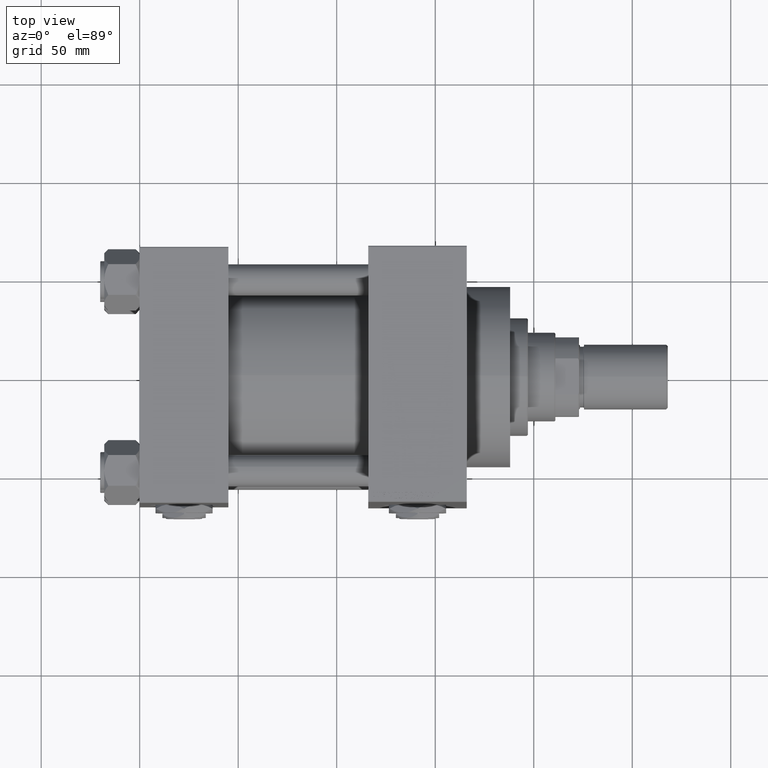
[diagram: clean part render]
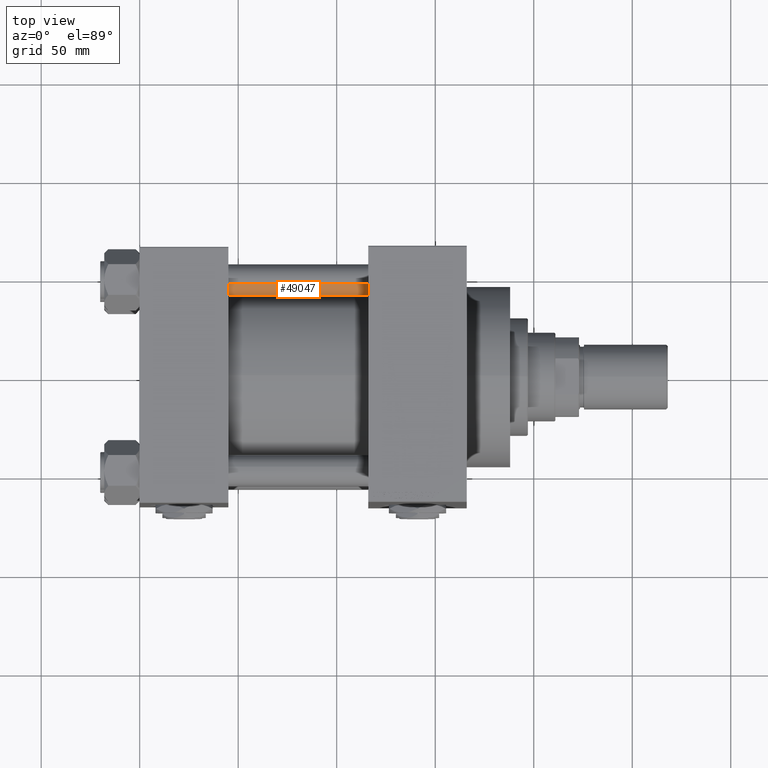
[diagram: same view with one face highlighted and labeled with its STEP entity id]
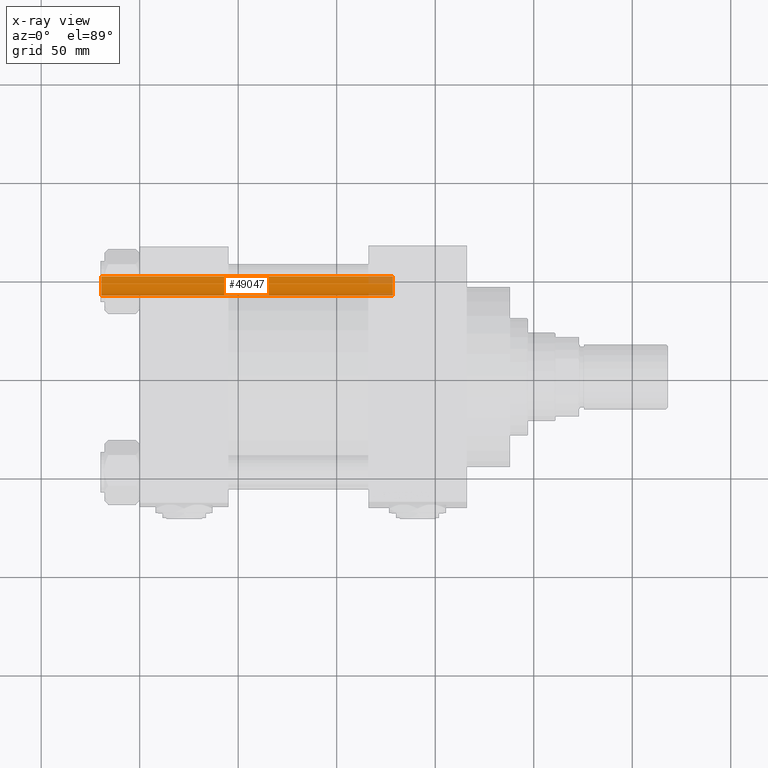
[diagram: x-ray of the same camera — body ghosted, the highlighted face saturated]
A machine part, top view. The second image highlights one B-rep face of the part: STEP entity #49047.
The next image is the same camera in x-ray: the body ghosted, the highlighted face saturated — about 4% of this face is hidden behind the body in this view.
In plain terms, the highlighted cylindrical surface (edge-blend (fillet) strip) has radius 8 mm, axis along (-1, -0, 0).
Its self-contained STEP definition (entity closure, byte-faithful):
#559 = DIRECTION ( 'NONE',  ( -0.000000000000000000, -0.000000000000000000, -1.000000000000000000 ) ) ;
#1033 = CIRCLE ( 'NONE', #15620, 8.000000000000000000 ) ;
#1592 = EDGE_CURVE ( 'NONE', #46368, #23770, #46468, .T. ) ;
#2870 = CARTESIAN_POINT ( 'NONE',  ( -8.000000000000000000, 0.000000000000000000, 148.5000000000000000 ) ) ;
#3336 = CARTESIAN_POINT ( 'NONE',  ( 8.000000000000000000, 9.797174393178825657E-16, 0.5000000000000281997 ) ) ;
#3661 = CIRCLE ( 'NONE', #35279, 8.000000000000000000 ) ;
#4604 = CARTESIAN_POINT ( 'NONE',  ( 8.000000000000000000, 9.797174393178825657E-16, 148.5000000000000000 ) ) ;
#8662 = CARTESIAN_POINT ( 'NONE',  ( 0.000000000000000000, 0.000000000000000000, 149.0000000000000000 ) ) ;
#8705 = CARTESIAN_POINT ( 'NONE',  ( 0.000000000000000000, 0.000000000000000000, 0.5000000000000281997 ) ) ;
#14909 = ORIENTED_EDGE ( 'NONE', *, *, #39596, .F. ) ;
#15439 = ORIENTED_EDGE ( 'NONE', *, *, #31336, .T. ) ;
#15620 = AXIS2_PLACEMENT_3D ( 'NONE', #8705, #47335, #28521 ) ;
#16945 = VERTEX_POINT ( 'NONE', #4604 ) ;
#17625 = CARTESIAN_POINT ( 'NONE',  ( 0.000000000000000000, 0.000000000000000000, 148.5000000000000000 ) ) ;
#18635 = CARTESIAN_POINT ( 'NONE',  ( 8.000000000000000000, 9.797174393178825657E-16, 149.0000000000000000 ) ) ;
#20251 = CARTESIAN_POINT ( 'NONE',  ( -8.000000000000000000, 0.000000000000000000, 149.0000000000000000 ) ) ;
#21111 = CARTESIAN_POINT ( 'NONE',  ( -8.000000000000000000, 0.000000000000000000, 0.5000000000000281997 ) ) ;
#21808 = AXIS2_PLACEMENT_3D ( 'NONE', #8662, #559, #47294 ) ;
#23770 = VERTEX_POINT ( 'NONE', #21111 ) ;
#23995 = EDGE_LOOP ( 'NONE', ( #14909, #48986, #40880, #15439 ) ) ;
#27488 = CYLINDRICAL_SURFACE ( 'NONE', #21808, 8.000000000000000000 ) ;
#28521 = DIRECTION ( 'NONE',  ( 1.000000000000000000, 0.000000000000000000, 0.000000000000000000 ) ) ;
#29407 = VECTOR ( 'NONE', #43396, 1000.000000000000000 ) ;
#30597 = DIRECTION ( 'NONE',  ( -0.000000000000000000, -0.000000000000000000, -1.000000000000000000 ) ) ;
#31336 = EDGE_CURVE ( 'NONE', #23770, #40645, #1033, .T. ) ;
#31797 = FACE_OUTER_BOUND ( 'NONE', #23995, .T. ) ;
#32631 = DIRECTION ( 'NONE',  ( 0.000000000000000000, 0.000000000000000000, -1.000000000000000000 ) ) ;
#33145 = DIRECTION ( 'NONE',  ( 1.000000000000000000, 0.000000000000000000, 0.000000000000000000 ) ) ;
#35279 = AXIS2_PLACEMENT_3D ( 'NONE', #17625, #32631, #33145 ) ;
#36104 = VECTOR ( 'NONE', #30597, 1000.000000000000000 ) ;
#39399 = EDGE_CURVE ( 'NONE', #16945, #46368, #3661, .T. ) ;
#39596 = EDGE_CURVE ( 'NONE', #16945, #40645, #45335, .T. ) ;
#40645 = VERTEX_POINT ( 'NONE', #3336 ) ;
#40880 = ORIENTED_EDGE ( 'NONE', *, *, #1592, .T. ) ;
#43396 = DIRECTION ( 'NONE',  ( -0.000000000000000000, -0.000000000000000000, -1.000000000000000000 ) ) ;
#45335 = LINE ( 'NONE', #18635, #36104 ) ;
#46368 = VERTEX_POINT ( 'NONE', #2870 ) ;
#46468 = LINE ( 'NONE', #20251, #29407 ) ;
#47294 = DIRECTION ( 'NONE',  ( -1.000000000000000000, 0.000000000000000000, 0.000000000000000000 ) ) ;
#47335 = DIRECTION ( 'NONE',  ( -0.000000000000000000, -0.000000000000000000, 1.000000000000000000 ) ) ;
#48986 = ORIENTED_EDGE ( 'NONE', *, *, #39399, .T. ) ;
#49047 = ADVANCED_FACE ( 'NONE', ( #31797 ), #27488, .T. ) ;